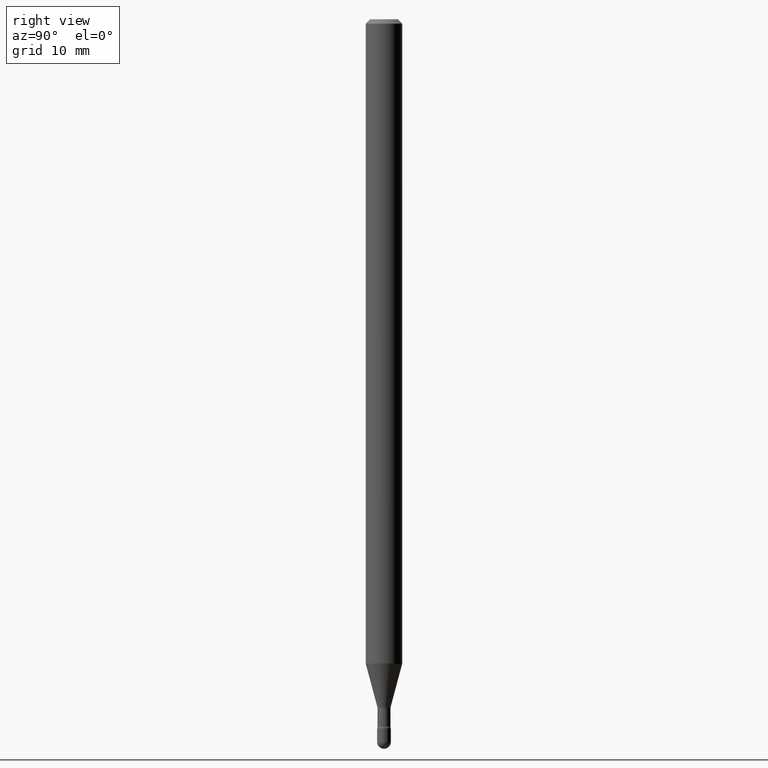
[diagram: clean part render]
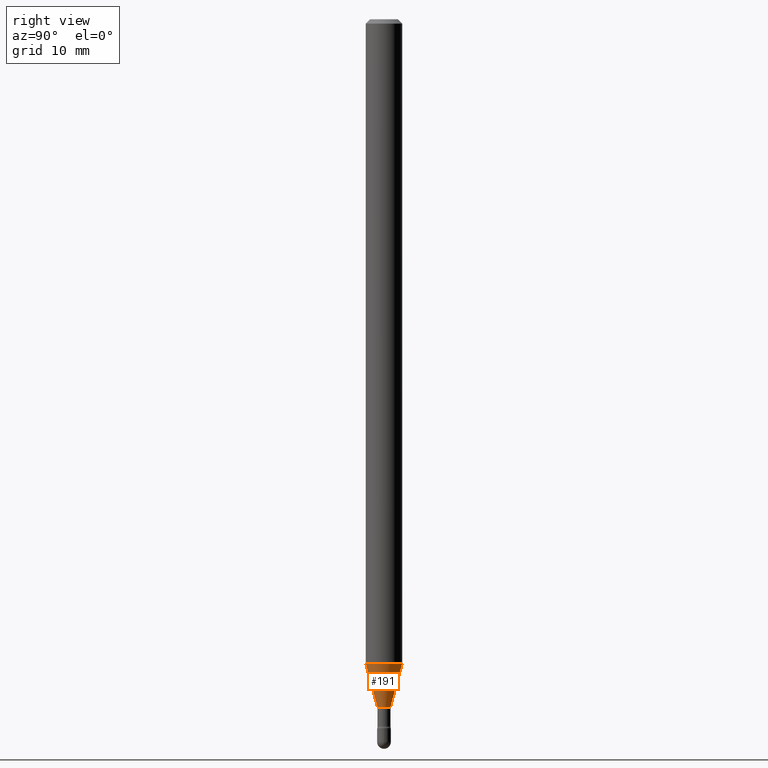
[diagram: same view with one face highlighted and labeled with its STEP entity id]
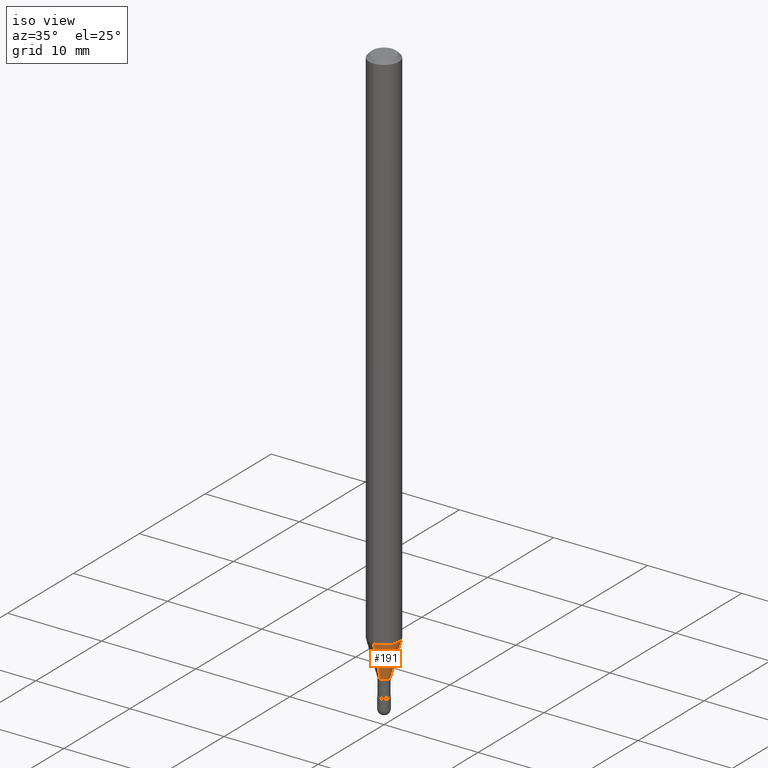
[diagram: same view with one face highlighted and labeled with its STEP entity id]
A machine part, right view. The second image highlights one B-rep face of the part: STEP entity #191.
A second angle (iso view) of the same face is appended — the face is thin or edge-on in the first view.
In plain terms, the highlighted conical surface has half-angle 15 deg.
Its self-contained STEP definition (entity closure, byte-faithful):
#7 = EDGE_LOOP ( 'NONE', ( #540, #252, #132, #71 ) ) ;
#12 = LINE ( 'NONE', #538, #322 ) ;
#42 = CONICAL_SURFACE ( 'NONE', #323, 0.02261111260566397996, 0.2617993877991501850 ) ;
#71 = ORIENTED_EDGE ( 'NONE', *, *, #331, .F. ) ;
#115 = DIRECTION ( 'NONE',  ( -6.982962677686265922E-15, -1.000000000000000000, 0.000000000000000000 ) ) ;
#121 = CARTESIAN_POINT ( 'NONE',  ( 5.764167902617136979E-29, -8.229784987923804160E-15, -2.357092501787273253 ) ) ;
#127 = CARTESIAN_POINT ( 'NONE',  ( 4.440892098501163573E-16, 0.06249999999999226313, -2.208225147374218267 ) ) ;
#131 = LINE ( 'NONE', #481, #536 ) ;
#132 = ORIENTED_EDGE ( 'NONE', *, *, #349, .F. ) ;
#149 = DIRECTION ( 'NONE',  ( 1.839019923739599526E-15, 0.2588190451025248473, 0.9659258262890670910 ) ) ;
#151 = EDGE_CURVE ( 'NONE', #377, #414, #227, .T. ) ;
#156 = DIRECTION ( 'NONE',  ( -6.982962677686265922E-15, -1.000000000000000000, 4.370956789862821150E-15 ) ) ;
#191 = ADVANCED_FACE ( 'NONE', ( #456 ), #42, .T. ) ;
#207 = CARTESIAN_POINT ( 'NONE',  ( 5.400119217465999083E-29, -7.710014839908176533E-15, -2.208225147374217823 ) ) ;
#213 = CARTESIAN_POINT ( 'NONE',  ( -1.578925554262553659E-16, -0.02261111260567220949, -2.357092501787273253 ) ) ;
#221 = CARTESIAN_POINT ( 'NONE',  ( -4.364351673553378297E-16, -0.06250000000000772993, -2.208225147374217823 ) ) ;
#227 = CIRCLE ( 'NONE', #545, 0.02261111260566397996 ) ;
#230 = VERTEX_POINT ( 'NONE', #221 ) ;
#239 = AXIS2_PLACEMENT_3D ( 'NONE', #207, #367, #156 ) ;
#250 = EDGE_CURVE ( 'NONE', #414, #420, #12, .T. ) ;
#252 = ORIENTED_EDGE ( 'NONE', *, *, #250, .T. ) ;
#304 = CARTESIAN_POINT ( 'NONE',  ( 3.023754139721279785E-16, 0.02261111260565575043, -2.357092501787273253 ) ) ;
#322 = VECTOR ( 'NONE', #149, 39.37007874015748143 ) ;
#323 = AXIS2_PLACEMENT_3D ( 'NONE', #121, #555, #336 ) ;
#324 = CIRCLE ( 'NONE', #239, 0.06250000000000000000 ) ;
#331 = EDGE_CURVE ( 'NONE', #377, #230, #131, .T. ) ;
#336 = DIRECTION ( 'NONE',  ( -6.982962677686265922E-15, -1.000000000000000000, 0.000000000000000000 ) ) ;
#349 = EDGE_CURVE ( 'NONE', #230, #420, #324, .T. ) ;
#367 = DIRECTION ( 'NONE',  ( -2.445456806742390166E-29, 3.491498522728124281E-15, 1.000000000000000000 ) ) ;
#377 = VERTEX_POINT ( 'NONE', #213 ) ;
#414 = VERTEX_POINT ( 'NONE', #304 ) ;
#420 = VERTEX_POINT ( 'NONE', #127 ) ;
#426 = DIRECTION ( 'NONE',  ( -1.807323732225329350E-15, -0.2588190451025180194, 0.9659258262890689783 ) ) ;
#456 = FACE_OUTER_BOUND ( 'NONE', #7, .T. ) ;
#481 = CARTESIAN_POINT ( 'NONE',  ( -1.578925554262553659E-16, -0.02261111260567220949, -2.357092501787273253 ) ) ;
#503 = CARTESIAN_POINT ( 'NONE',  ( 5.764167902617136979E-29, -8.229784987923804160E-15, -2.357092501787273253 ) ) ;
#516 = DIRECTION ( 'NONE',  ( -2.445456806742390166E-29, 3.491498522728124281E-15, 1.000000000000000000 ) ) ;
#536 = VECTOR ( 'NONE', #426, 39.37007874015749564 ) ;
#538 = CARTESIAN_POINT ( 'NONE',  ( 1.606616180941393285E-16, 0.02261111260565575043, -2.357092501787273253 ) ) ;
#540 = ORIENTED_EDGE ( 'NONE', *, *, #151, .T. ) ;
#545 = AXIS2_PLACEMENT_3D ( 'NONE', #503, #516, #115 ) ;
#555 = DIRECTION ( 'NONE',  ( -2.445456806742390166E-29, 3.491498522728124281E-15, 1.000000000000000000 ) ) ;